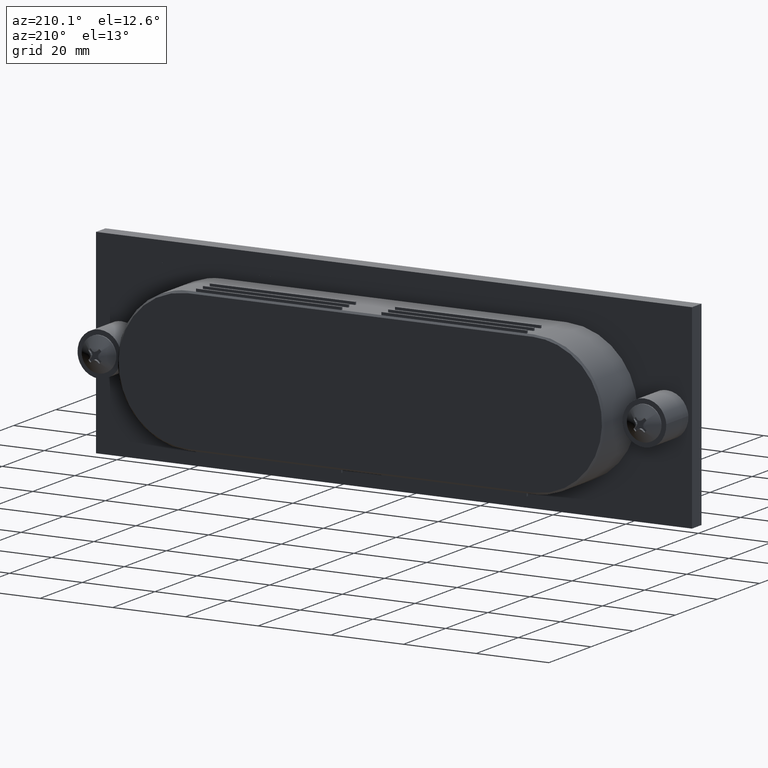
[diagram: clean part render]
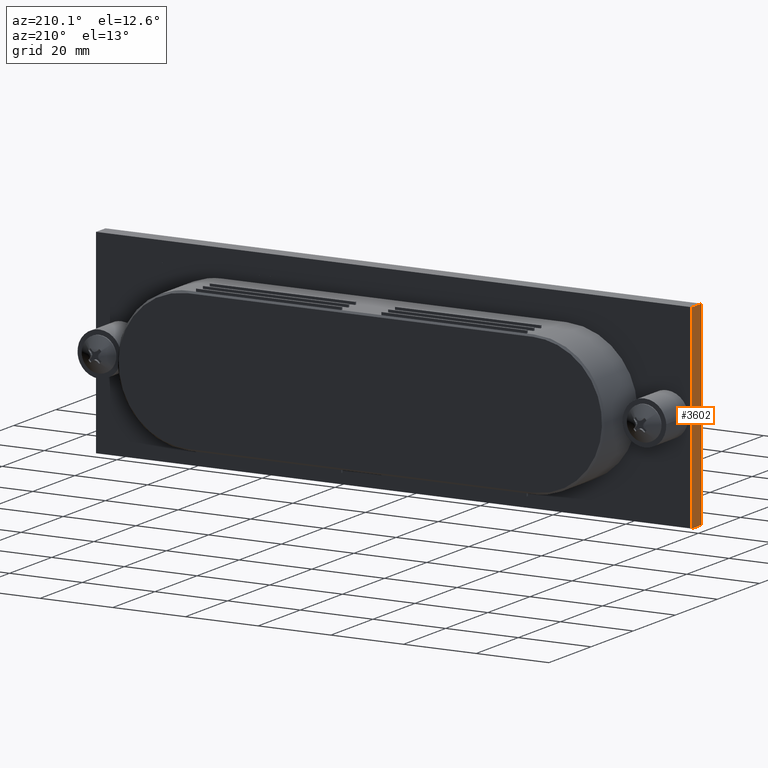
[diagram: same view with one face highlighted and labeled with its STEP entity id]
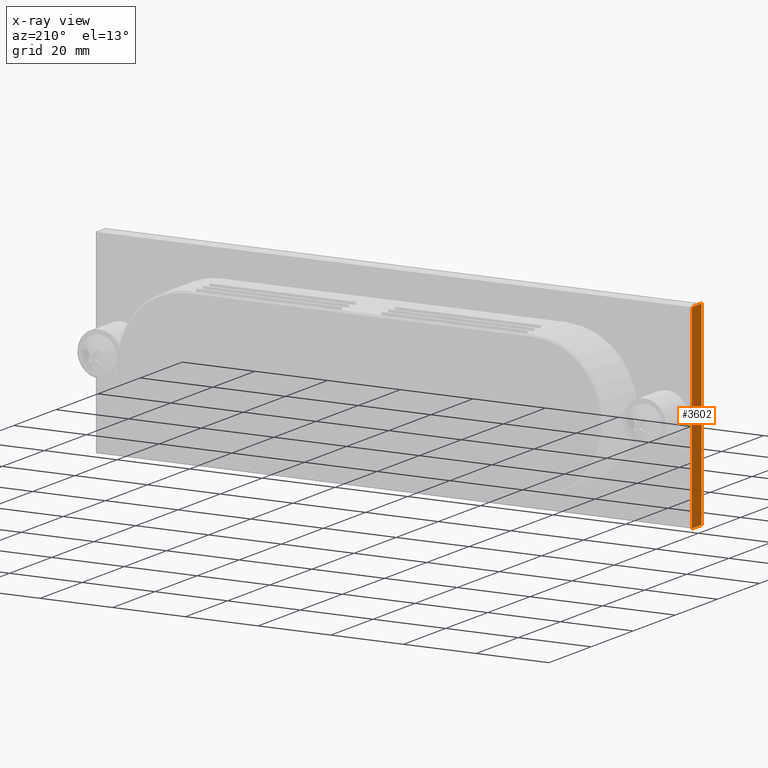
[diagram: x-ray of the same camera — body ghosted, the highlighted face saturated]
A machine part, auxiliary view. The second image highlights one B-rep face of the part: STEP entity #3602.
The next image is the same camera in x-ray: the body ghosted, the highlighted face saturated — about 0% of this face is hidden behind the body in this view.
In plain terms, the highlighted face is a freeform B-spline surface patch.
Its self-contained STEP definition (entity closure, byte-faithful):
#2986=CARTESIAN_POINT('',(-82.0,1.999999999999890,27.0));
#2987=VERTEX_POINT('',#2986);
#2993=CARTESIAN_POINT('',(-82.0,1.999999999999670,-27.0));
#2994=VERTEX_POINT('',#2993);
#2995=CARTESIAN_POINT('',(-82.0,1.999999999999670,-27.0));
#2996=CARTESIAN_POINT('',(-82.0,1.999999999999890,27.0));
#2997=QUASI_UNIFORM_CURVE('',1,(#2995,#2996),.UNSPECIFIED.,.F.,.U.);
#2998=EDGE_CURVE('',#2994,#2987,#2997,.T.);
#3566=CARTESIAN_POINT('',(-82.0,6.500000000000000,-27.0));
#3567=VERTEX_POINT('',#3566);
#3568=CARTESIAN_POINT('',(-82.0,6.500000000000000,-27.0));
#3569=CARTESIAN_POINT('',(-82.0,1.999999999999670,-27.0));
#3570=QUASI_UNIFORM_CURVE('',1,(#3568,#3569),.UNSPECIFIED.,.F.,.U.);
#3571=EDGE_CURVE('',#3567,#2994,#3570,.T.);
#3581=CARTESIAN_POINT('',(-82.0,1.775225008721527,-29.697299895337519));
#3582=CARTESIAN_POINT('',(-82.0,1.775225008721527,29.697301343730391));
#3583=CARTESIAN_POINT('',(-82.0,6.724775111977549,-29.697299895337519));
#3584=CARTESIAN_POINT('',(-82.0,6.724775111977550,29.697301343730391));
#3585=B_SPLINE_SURFACE_WITH_KNOTS('',1,1,((#3581,#3583),(#3582,#3584)),.UNSPECIFIED.,.F.,.F.,.U.,(2,2),(2,2),(0.0,59.394601239067910),(0.0,4.949550103256023),.UNSPECIFIED.);
#3586=ORIENTED_EDGE('',*,*,#3571,.T.);
#3587=ORIENTED_EDGE('',*,*,#2998,.T.);
#3588=CARTESIAN_POINT('',(-82.0,6.500000000000000,27.0));
#3589=VERTEX_POINT('',#3588);
#3590=CARTESIAN_POINT('',(-82.0,6.500000000000000,27.0));
#3591=CARTESIAN_POINT('',(-82.0,1.999999999999890,27.0));
#3592=QUASI_UNIFORM_CURVE('',1,(#3590,#3591),.UNSPECIFIED.,.F.,.U.);
#3593=EDGE_CURVE('',#3589,#2987,#3592,.T.);
#3594=ORIENTED_EDGE('',*,*,#3593,.F.);
#3595=CARTESIAN_POINT('',(-82.0,6.500000000000000,27.0));
#3596=CARTESIAN_POINT('',(-82.0,6.500000000000000,-27.0));
#3597=QUASI_UNIFORM_CURVE('',1,(#3595,#3596),.UNSPECIFIED.,.F.,.U.);
#3598=EDGE_CURVE('',#3589,#3567,#3597,.T.);
#3599=ORIENTED_EDGE('',*,*,#3598,.T.);
#3600=EDGE_LOOP('',(#3586,#3587,#3594,#3599));
#3601=FACE_OUTER_BOUND('',#3600,.T.);
#3602=ADVANCED_FACE('',(#3601),#3585,.T.);